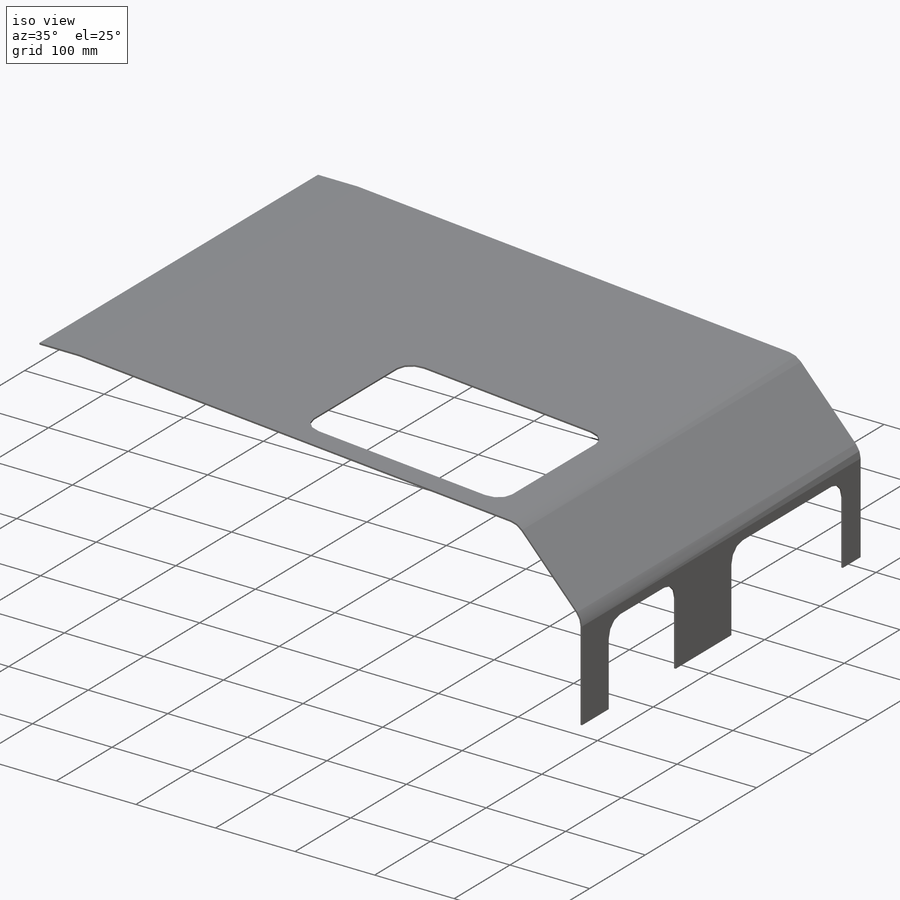
[diagram: iso view]
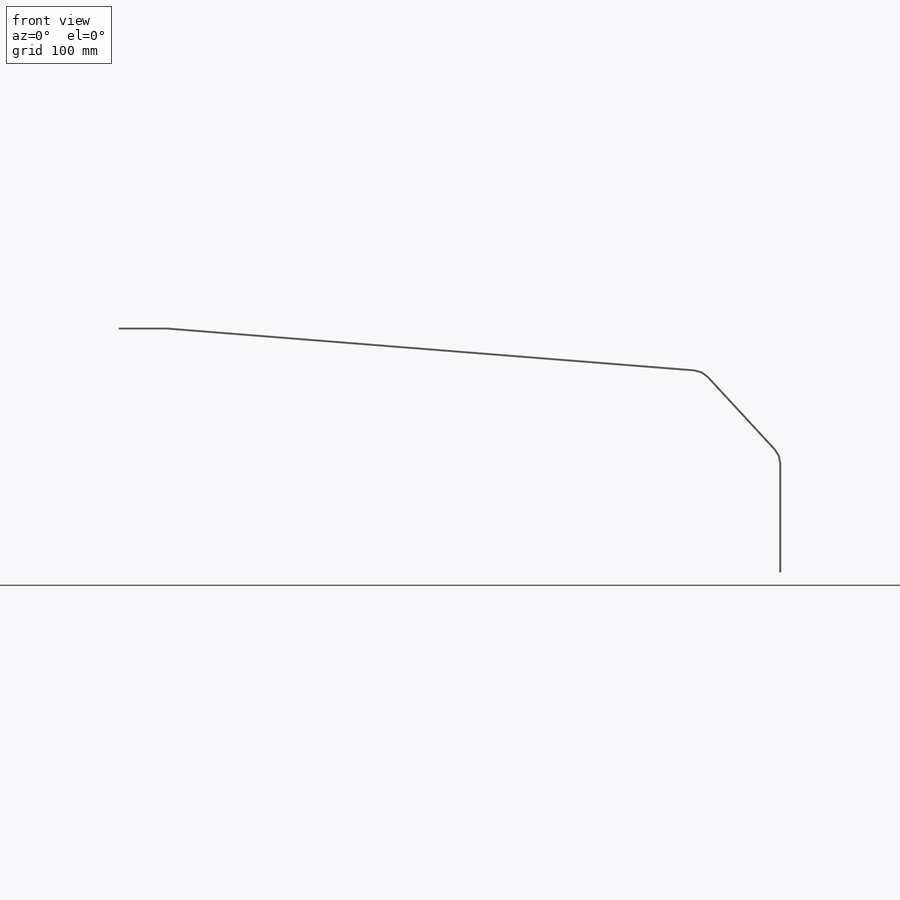
[diagram: front view]
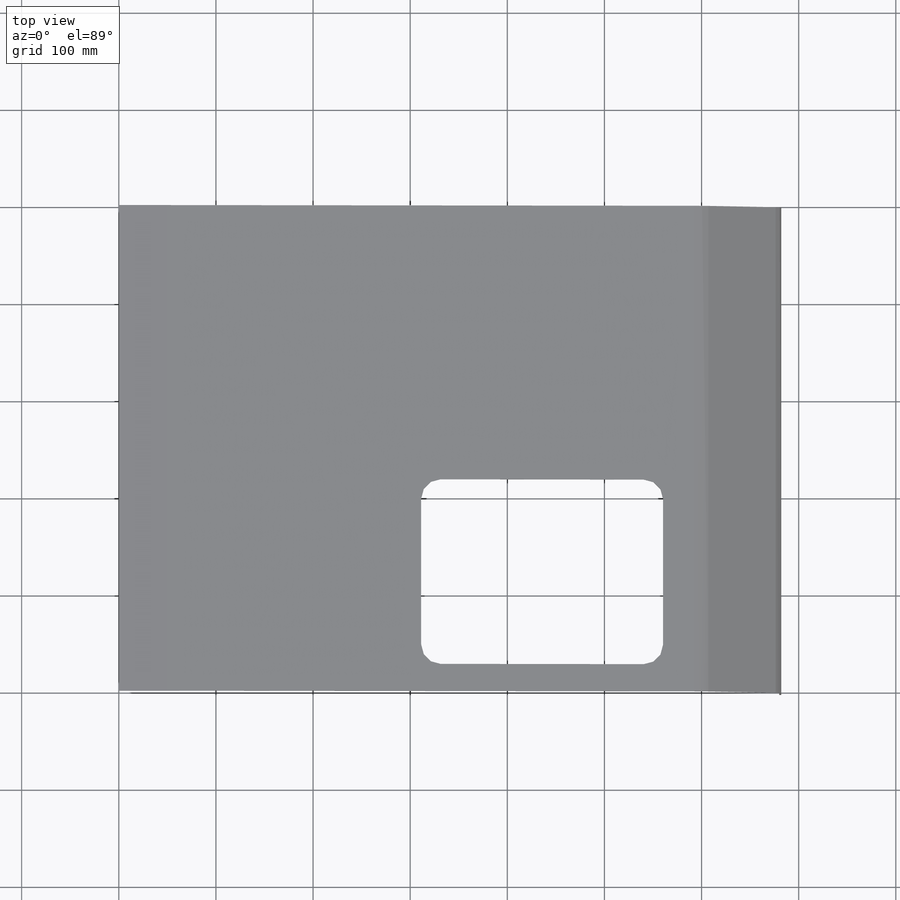
[diagram: top view]
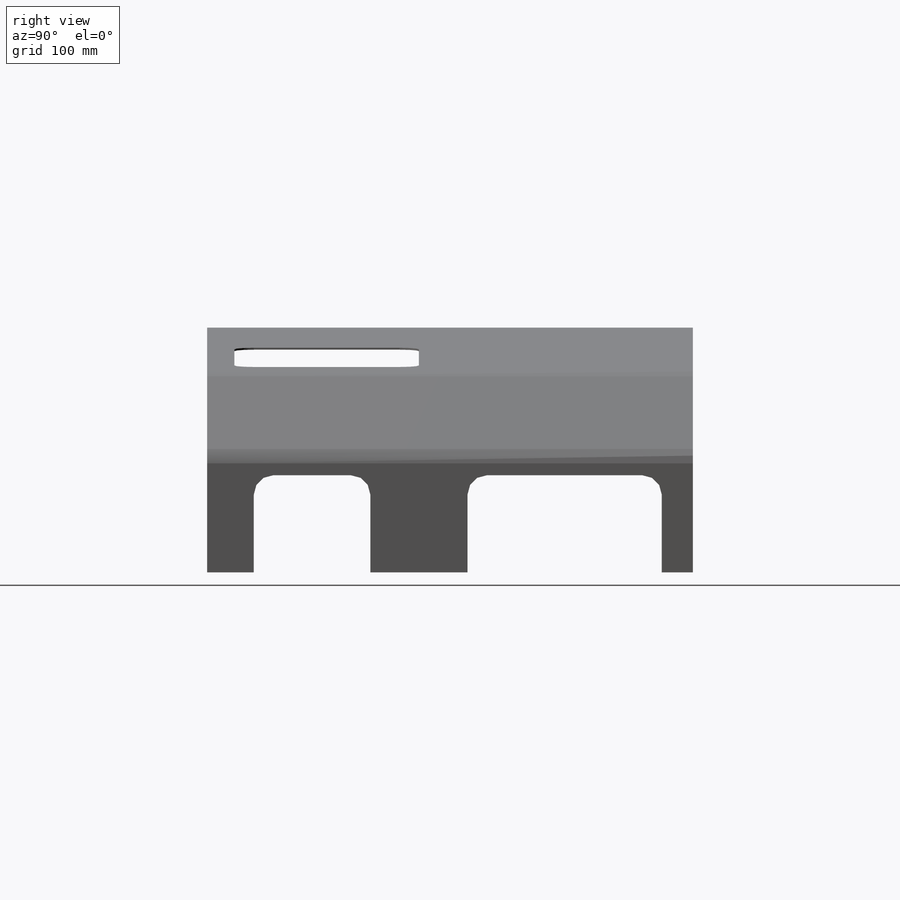
[diagram: right view]
SOLIDWORKS PART (.sldprt)
format: sldprt  version: not decoded by parser v0  size: 1,234,944 bytes
history: native  units: mm
features: sketch x16, cut_extrude x3, shell x2, sheet_metal_op x2, material x1, extrude x1 + 5 further entries (+11 scaffold rows collapsed; 1 parser-record rows omitted)
feature tree (42):
  scaffold x11  (default folders/planes/origin — collapsed)
  material  "Material <not specified>"
  sketch  "Model"  dims[c1.D1=22.0mm c1.D2=22.0mm c1.D3=22.0mm c1.D15=22.0mm c1.D4=~49.207559mm c1.D5=~49.207559mm c1.D6=~50.948201mm c1.D7=~50.948201mm c1.D8=~590.871401mm c1.D9=~590.871401mm c1.D10=~592.612046mm c1.D11=~592.612046mm c1.D12=~607.031447mm c1.D13=~607.031447mm c1.D14=660.0mm c2.D15=660.0mm c2.D16=~676.160047mm c2.D17=~676.160047mm c2.D18=682.0mm c2.D19=682.0mm c2.D6=~50.948201mm c2.D7=~590.871401mm c2.D8=~592.612046mm c2.D9=~607.031447mm c2.D10=660.0mm c2.D11=~676.160047mm c2.D12=~112.175975mm c2.D13=~112.175975mm c2.D14=~127.104233mm c3.D15=~127.104233mm c3.D16=~187.008641mm c3.D17=~187.008641mm c3.D20=201.9369mm c3.D21=201.9369mm c3.D22=~208.939673mm c3.D23=~208.939673mm c3.D24=230.0mm c3.D25=230.0mm c3.D26=~251.931032mm c3.D27=~251.931032mm c3.D28=252.0mm c3.D29=252.0mm c3.D12=~112.175975mm c3.D13=~187.008641mm c3.D14=230.0mm c4.D15=~49.207559mm c4.D16=~50.948201mm c4.D17=~590.871401mm c4.D20=~592.612046mm c4.D21=~607.031447mm c4.D22=660.0mm c4.D23=~676.160047mm c4.D24=682.0mm c5.D15=~112.175975mm c5.D16=~127.104233mm c5.D17=~187.008641mm c5.D20=201.9369mm c5.D21=~208.939673mm c5.D22=230.0mm c5.D23=~251.931032mm c5.D24=252.0mm c6.D15=252.0mm c6.D4=682.0mm c6.D5=252.0mm c6.D6=~543.368348mm c6.D7=~49.207559mm c6.D8=~101.875118mm c6.D9=~112.175975mm]
  extrude  "Boss-Extrude1"  Depth=504mm
  shell  "Shell2"  Thickness=2mm
  sheet_metal_op  "Sheet-Metal9"  RoundBend5=0 RoundBend6=0
  parser-record x1  (decoder bookkeeping rows leaked as tree rows — omitted from the tree; the rows remain in map.json)
  sketch  "Sketch9"  dims[c1.D1=20.0mm c1.D2=20.0mm c1.D6=20.0mm c2.D1=~61.433446mm c2.D3=100.0mm c2.D4=50.0mm c2.D5=120.0mm c2.D6=~94.586865mm c2.D7=34.0mm c2.D8=200.0mm c2.D9=100.0mm]
  cut_extrude  "Cut-Extrude3"  [1 undecoded]
  sketch  "Sketch10"  dims[D1=~109.306103mm D2=30.0mm D3=312.0mm D4=250.0mm D5=190.0mm]
  cut_extrude  "Cut-Extrude4"  Depth=10mm
  sketch  "Sketch9-1"  dims[c1.D1=20.0mm c1.D2=20.0mm c1.D6=20.0mm c2.D1=~61.433446mm c2.D3=100.0mm c2.D4=50.0mm c2.D5=120.0mm c2.D6=~94.586865mm c2.D7=34.0mm c2.D8=200.0mm c2.D9=100.0mm]
  sketch  "Sketch13"  dims[c1.D1=~6.805111mm c1.D2=~839.613723mm c2.D1=2.0mm c2.D2=~7.528576mm c2.D3=~839.613723mm c3.D2=2.0mm]
  cut_extrude  "Cut-Extrude5"  Depth=10mm
  "Fold2"
  sketch  "Sketch9-2"  dims[c1.D1=20.0mm c1.D2=20.0mm c1.D6=20.0mm c2.D1=~61.433446mm c2.D3=100.0mm c2.D4=50.0mm c2.D5=120.0mm c2.D6=~94.586865mm c2.D7=34.0mm c2.D8=200.0mm c2.D9=100.0mm]
  sketch  "Sketch10-1"  dims[D1=~109.306103mm D2=30.0mm D3=~312.07688mm D4=250.0mm D5=190.0mm]
  sketch  "Sketch13-1"  dims[c1.D1=~6.805111mm c1.D2=~839.613723mm c2.D1=2.0mm c2.D2=~7.528576mm c2.D3=~839.613723mm c3.D2=2.0mm]
  "Fold3"
  sketch  "Sketch10-2"  dims[D1=~109.306103mm D2=30.0mm D3=312.0mm D4=250.0mm D5=190.0mm]
  sketch  "Sketch13-2"  dims[c1.D1=~6.805111mm c1.D2=~839.613723mm c2.D1=2.0mm c2.D2=~7.528576mm c2.D3=~839.613723mm c3.D2=2.0mm]
  sketch  "Sketch9-3"  dims[c1.D1=20.0mm c1.D2=20.0mm c1.D6=20.0mm c2.D1=~61.433446mm c2.D3=100.0mm c2.D4=50.0mm c2.D5=120.0mm c2.D6=~94.586865mm c2.D7=34.0mm c2.D8=200.0mm c2.D9=100.0mm]
  "Fold4"
  sketch  "Sketch9-4"  dims[c1.D1=20.0mm c1.D2=20.0mm c1.D6=20.0mm c2.D1=~61.433446mm c2.D3=100.0mm c2.D4=50.0mm c2.D5=120.0mm c2.D6=~94.586865mm c2.D7=34.0mm c2.D8=200.0mm c2.D9=100.0mm]
  shell  "Shell1"  Thickness=2mm
  sheet_metal_op  "Sheet-Metal5"
  "Flat-Pattern5"
  sketch  "Bend-Lines5"
  sketch  "Bounding-Box5"
  "Flat-Pattern9"
  sketch  "Bend-Lines9"
  sketch  "Bounding-Box9"
decode coverage: 18 of 24 modeling features carry decoded parameters; 5 rows unclassified (native names shown)
note: ~ marks probable driven/reference dimensions
note: 1 parameter value undecoded
note: suppression state not decoded; provenance and decode notes live in map.json
